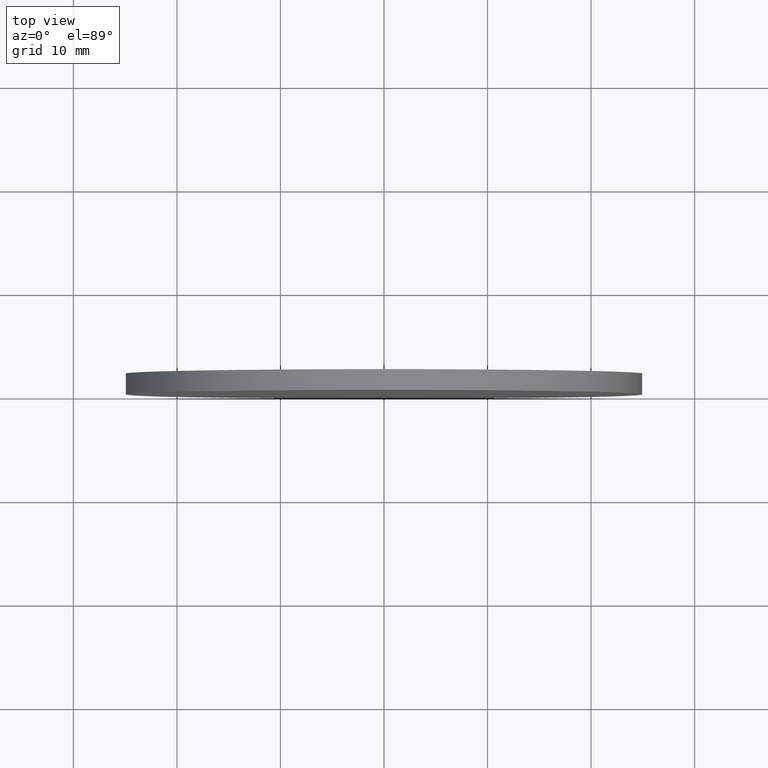
[diagram: clean part render]
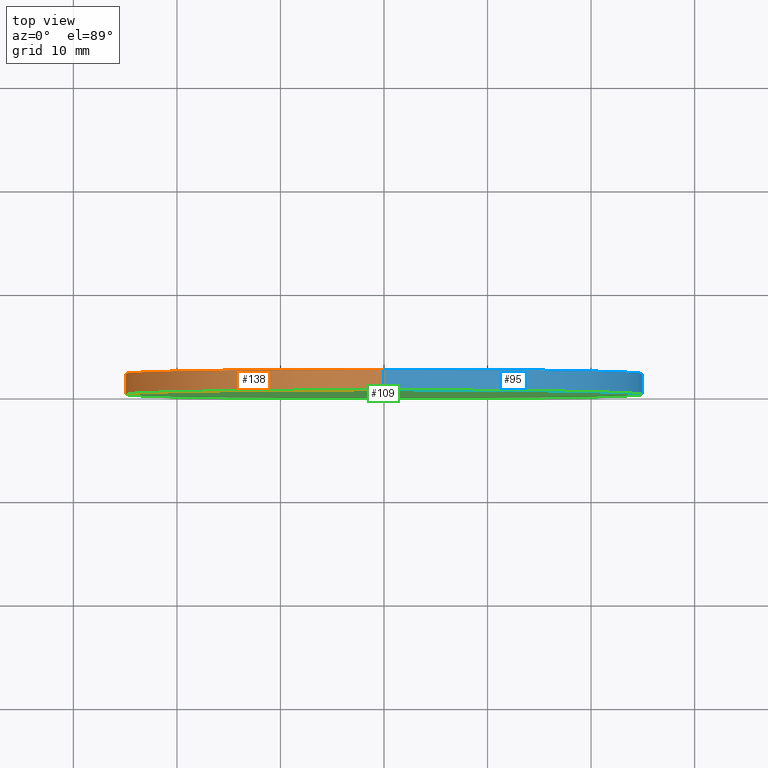
[diagram: same view with three faces highlighted in distinct colors, each labeled with its STEP entity id]
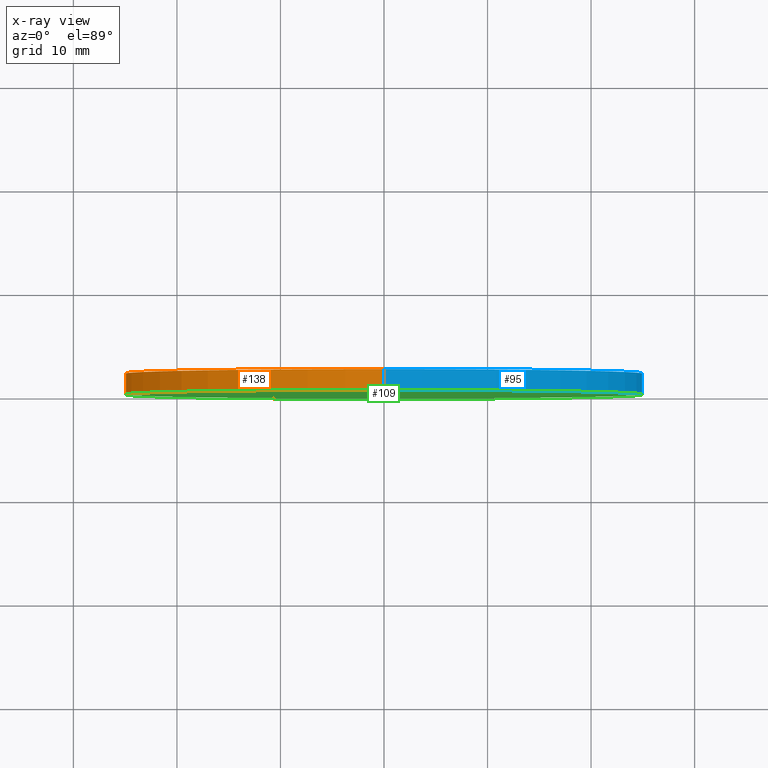
[diagram: x-ray of the same camera — body ghosted, the three highlighted faces saturated]
A machine part, top view with three faces highlighted in distinct colors.
The next image is the same camera in x-ray (body ghosted, the three faces saturated) — at least one of them is partly hidden behind the body in this view.
Their STEP definitions:

[orange] entity #138 — the highlighted cylindrical surface (partial cylindrical patch) has radius 25 mm, axis along (-0, -1, -0).
#3 = EDGE_CURVE ( 'NONE', #49, #126, #128, .T. ) ;
#11 = ORIENTED_EDGE ( 'NONE', *, *, #21, .T. ) ;
#18 = CARTESIAN_POINT ( 'NONE',  ( 0.0000000000000000000, 2.000000000000000000, -25.00000000000000000 ) ) ;
#21 = EDGE_CURVE ( 'NONE', #126, #41, #43, .T. ) ;
#24 = EDGE_LOOP ( 'NONE', ( #79, #135, #91, #11 ) ) ;
#27 = CARTESIAN_POINT ( 'NONE',  ( 0.0000000000000000000, 2.000000000000000000, 0.0000000000000000000 ) ) ;
#29 = VERTEX_POINT ( 'NONE', #74 ) ;
#32 = CARTESIAN_POINT ( 'NONE',  ( 0.0000000000000000000, 0.0000000000000000000, -25.00000000000000000 ) ) ;
#35 = DIRECTION ( 'NONE',  ( -0.0000000000000000000, -1.000000000000000000, -0.0000000000000000000 ) ) ;
#41 = VERTEX_POINT ( 'NONE', #80 ) ;
#42 = FACE_OUTER_BOUND ( 'NONE', #24, .T. ) ;
#43 = CIRCLE ( 'NONE', #105, 25.00000000000000000 ) ;
#49 = VERTEX_POINT ( 'NONE', #18 ) ;
#53 = EDGE_CURVE ( 'NONE', #49, #29, #76, .T. ) ;
#59 = CARTESIAN_POINT ( 'NONE',  ( 0.0000000000000000000, 0.0000000000000000000, 0.0000000000000000000 ) ) ;
#64 = AXIS2_PLACEMENT_3D ( 'NONE', #27, #83, #115 ) ;
#65 = CARTESIAN_POINT ( 'NONE',  ( 0.0000000000000000000, 2.000000000000000000, -25.00000000000000000 ) ) ;
#67 = AXIS2_PLACEMENT_3D ( 'NONE', #133, #136, #123 ) ;
#74 = CARTESIAN_POINT ( 'NONE',  ( 3.061616997868383000E-015, 2.000000000000000000, 25.00000000000000000 ) ) ;
#76 = CIRCLE ( 'NONE', #64, 25.00000000000000000 ) ;
#79 = ORIENTED_EDGE ( 'NONE', *, *, #100, .F. ) ;
#80 = CARTESIAN_POINT ( 'NONE',  ( 3.061616997868383000E-015, 0.0000000000000000000, 25.00000000000000000 ) ) ;
#83 = DIRECTION ( 'NONE',  ( 0.0000000000000000000, 1.000000000000000000, 0.0000000000000000000 ) ) ;
#91 = ORIENTED_EDGE ( 'NONE', *, *, #3, .T. ) ;
#94 = LINE ( 'NONE', #108, #122 ) ;
#100 = EDGE_CURVE ( 'NONE', #29, #41, #94, .T. ) ;
#101 = DIRECTION ( 'NONE',  ( 0.0000000000000000000, 0.0000000000000000000, 1.000000000000000000 ) ) ;
#103 = VECTOR ( 'NONE', #131, 1000.000000000000000 ) ;
#105 = AXIS2_PLACEMENT_3D ( 'NONE', #59, #134, #101 ) ;
#108 = CARTESIAN_POINT ( 'NONE',  ( 3.061616997868383000E-015, 2.000000000000000000, 25.00000000000000000 ) ) ;
#113 = CYLINDRICAL_SURFACE ( 'NONE', #67, 25.00000000000000000 ) ;
#115 = DIRECTION ( 'NONE',  ( 0.0000000000000000000, 0.0000000000000000000, 1.000000000000000000 ) ) ;
#122 = VECTOR ( 'NONE', #35, 1000.000000000000000 ) ;
#123 = DIRECTION ( 'NONE',  ( 0.0000000000000000000, 0.0000000000000000000, -1.000000000000000000 ) ) ;
#126 = VERTEX_POINT ( 'NONE', #32 ) ;
#128 = LINE ( 'NONE', #65, #103 ) ;
#131 = DIRECTION ( 'NONE',  ( -0.0000000000000000000, -1.000000000000000000, -0.0000000000000000000 ) ) ;
#133 = CARTESIAN_POINT ( 'NONE',  ( 0.0000000000000000000, 2.000000000000000000, 0.0000000000000000000 ) ) ;
#134 = DIRECTION ( 'NONE',  ( 0.0000000000000000000, 1.000000000000000000, 0.0000000000000000000 ) ) ;
#135 = ORIENTED_EDGE ( 'NONE', *, *, #53, .F. ) ;
#136 = DIRECTION ( 'NONE',  ( -0.0000000000000000000, -1.000000000000000000, -0.0000000000000000000 ) ) ;
#138 = ADVANCED_FACE ( 'NONE', ( #42 ), #113, .T. ) ;

[blue] entity #95 — the highlighted cylindrical surface (partial cylindrical patch) has radius 25 mm, axis along (-0, -1, -0).
#3 = EDGE_CURVE ( 'NONE', #49, #126, #128, .T. ) ;
#9 = ORIENTED_EDGE ( 'NONE', *, *, #3, .F. ) ;
#10 = CYLINDRICAL_SURFACE ( 'NONE', #77, 25.00000000000000000 ) ;
#15 = CARTESIAN_POINT ( 'NONE',  ( 0.0000000000000000000, 2.000000000000000000, 0.0000000000000000000 ) ) ;
#17 = DIRECTION ( 'NONE',  ( 0.0000000000000000000, 1.000000000000000000, 0.0000000000000000000 ) ) ;
#18 = CARTESIAN_POINT ( 'NONE',  ( 0.0000000000000000000, 2.000000000000000000, -25.00000000000000000 ) ) ;
#19 = CIRCLE ( 'NONE', #33, 25.00000000000000000 ) ;
#29 = VERTEX_POINT ( 'NONE', #74 ) ;
#30 = EDGE_CURVE ( 'NONE', #29, #49, #19, .T. ) ;
#32 = CARTESIAN_POINT ( 'NONE',  ( 0.0000000000000000000, 0.0000000000000000000, -25.00000000000000000 ) ) ;
#33 = AXIS2_PLACEMENT_3D ( 'NONE', #37, #84, #121 ) ;
#35 = DIRECTION ( 'NONE',  ( -0.0000000000000000000, -1.000000000000000000, -0.0000000000000000000 ) ) ;
#37 = CARTESIAN_POINT ( 'NONE',  ( 0.0000000000000000000, 2.000000000000000000, 0.0000000000000000000 ) ) ;
#41 = VERTEX_POINT ( 'NONE', #80 ) ;
#48 = EDGE_CURVE ( 'NONE', #41, #126, #129, .T. ) ;
#49 = VERTEX_POINT ( 'NONE', #18 ) ;
#50 = AXIS2_PLACEMENT_3D ( 'NONE', #106, #17, #71 ) ;
#56 = DIRECTION ( 'NONE',  ( 0.0000000000000000000, 0.0000000000000000000, -1.000000000000000000 ) ) ;
#65 = CARTESIAN_POINT ( 'NONE',  ( 0.0000000000000000000, 2.000000000000000000, -25.00000000000000000 ) ) ;
#66 = FACE_OUTER_BOUND ( 'NONE', #89, .T. ) ;
#70 = ORIENTED_EDGE ( 'NONE', *, *, #48, .T. ) ;
#71 = DIRECTION ( 'NONE',  ( 0.0000000000000000000, 0.0000000000000000000, 1.000000000000000000 ) ) ;
#74 = CARTESIAN_POINT ( 'NONE',  ( 3.061616997868383000E-015, 2.000000000000000000, 25.00000000000000000 ) ) ;
#77 = AXIS2_PLACEMENT_3D ( 'NONE', #15, #99, #56 ) ;
#80 = CARTESIAN_POINT ( 'NONE',  ( 3.061616997868383000E-015, 0.0000000000000000000, 25.00000000000000000 ) ) ;
#84 = DIRECTION ( 'NONE',  ( 0.0000000000000000000, 1.000000000000000000, 0.0000000000000000000 ) ) ;
#89 = EDGE_LOOP ( 'NONE', ( #111, #114, #70, #9 ) ) ;
#94 = LINE ( 'NONE', #108, #122 ) ;
#95 = ADVANCED_FACE ( 'NONE', ( #66 ), #10, .T. ) ;
#99 = DIRECTION ( 'NONE',  ( -0.0000000000000000000, -1.000000000000000000, -0.0000000000000000000 ) ) ;
#100 = EDGE_CURVE ( 'NONE', #29, #41, #94, .T. ) ;
#103 = VECTOR ( 'NONE', #131, 1000.000000000000000 ) ;
#106 = CARTESIAN_POINT ( 'NONE',  ( 0.0000000000000000000, 0.0000000000000000000, 0.0000000000000000000 ) ) ;
#108 = CARTESIAN_POINT ( 'NONE',  ( 3.061616997868383000E-015, 2.000000000000000000, 25.00000000000000000 ) ) ;
#111 = ORIENTED_EDGE ( 'NONE', *, *, #30, .F. ) ;
#114 = ORIENTED_EDGE ( 'NONE', *, *, #100, .T. ) ;
#121 = DIRECTION ( 'NONE',  ( 0.0000000000000000000, 0.0000000000000000000, 1.000000000000000000 ) ) ;
#122 = VECTOR ( 'NONE', #35, 1000.000000000000000 ) ;
#126 = VERTEX_POINT ( 'NONE', #32 ) ;
#128 = LINE ( 'NONE', #65, #103 ) ;
#129 = CIRCLE ( 'NONE', #50, 25.00000000000000000 ) ;
#131 = DIRECTION ( 'NONE',  ( -0.0000000000000000000, -1.000000000000000000, -0.0000000000000000000 ) ) ;

[green] entity #109 — the highlighted planar face has unit normal (0, 1, 0).
#17 = DIRECTION ( 'NONE',  ( 0.0000000000000000000, 1.000000000000000000, 0.0000000000000000000 ) ) ;
#21 = EDGE_CURVE ( 'NONE', #126, #41, #43, .T. ) ;
#26 = DIRECTION ( 'NONE',  ( 0.0000000000000000000, -0.0000000000000000000, 1.000000000000000000 ) ) ;
#32 = CARTESIAN_POINT ( 'NONE',  ( 0.0000000000000000000, 0.0000000000000000000, -25.00000000000000000 ) ) ;
#36 = PLANE ( 'NONE',  #73 ) ;
#41 = VERTEX_POINT ( 'NONE', #80 ) ;
#43 = CIRCLE ( 'NONE', #105, 25.00000000000000000 ) ;
#45 = DIRECTION ( 'NONE',  ( 0.0000000000000000000, 1.000000000000000000, 0.0000000000000000000 ) ) ;
#48 = EDGE_CURVE ( 'NONE', #41, #126, #129, .T. ) ;
#50 = AXIS2_PLACEMENT_3D ( 'NONE', #106, #17, #71 ) ;
#51 = ORIENTED_EDGE ( 'NONE', *, *, #21, .F. ) ;
#58 = CARTESIAN_POINT ( 'NONE',  ( 0.0000000000000000000, 0.0000000000000000000, 0.0000000000000000000 ) ) ;
#59 = CARTESIAN_POINT ( 'NONE',  ( 0.0000000000000000000, 0.0000000000000000000, 0.0000000000000000000 ) ) ;
#71 = DIRECTION ( 'NONE',  ( 0.0000000000000000000, 0.0000000000000000000, 1.000000000000000000 ) ) ;
#73 = AXIS2_PLACEMENT_3D ( 'NONE', #58, #45, #26 ) ;
#80 = CARTESIAN_POINT ( 'NONE',  ( 3.061616997868383000E-015, 0.0000000000000000000, 25.00000000000000000 ) ) ;
#92 = FACE_OUTER_BOUND ( 'NONE', #98, .T. ) ;
#93 = ORIENTED_EDGE ( 'NONE', *, *, #48, .F. ) ;
#98 = EDGE_LOOP ( 'NONE', ( #51, #93 ) ) ;
#101 = DIRECTION ( 'NONE',  ( 0.0000000000000000000, 0.0000000000000000000, 1.000000000000000000 ) ) ;
#105 = AXIS2_PLACEMENT_3D ( 'NONE', #59, #134, #101 ) ;
#106 = CARTESIAN_POINT ( 'NONE',  ( 0.0000000000000000000, 0.0000000000000000000, 0.0000000000000000000 ) ) ;
#109 = ADVANCED_FACE ( 'NONE', ( #92 ), #36, .F. ) ;
#126 = VERTEX_POINT ( 'NONE', #32 ) ;
#129 = CIRCLE ( 'NONE', #50, 25.00000000000000000 ) ;
#134 = DIRECTION ( 'NONE',  ( 0.0000000000000000000, 1.000000000000000000, 0.0000000000000000000 ) ) ;